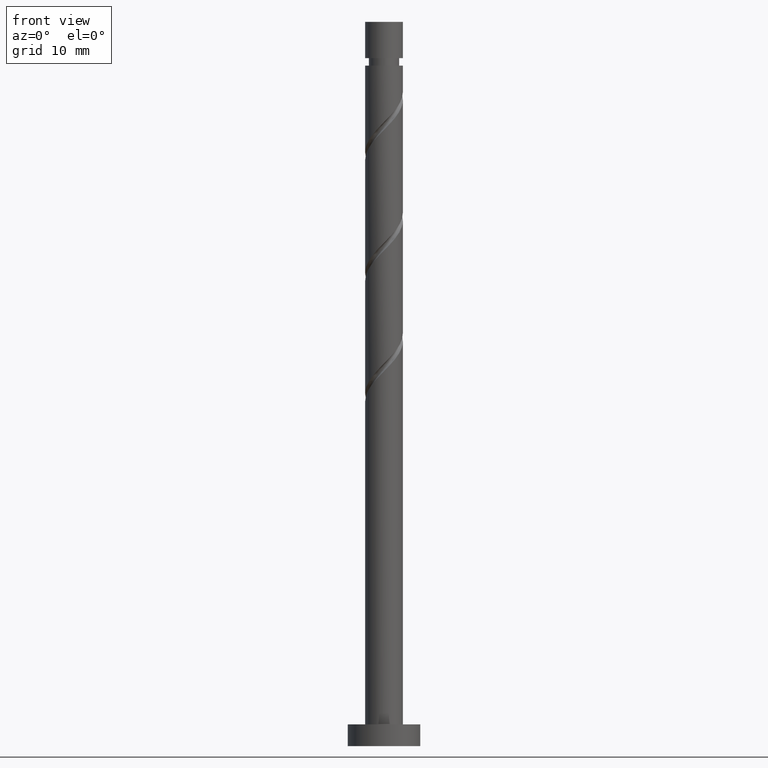
[diagram: clean part render]
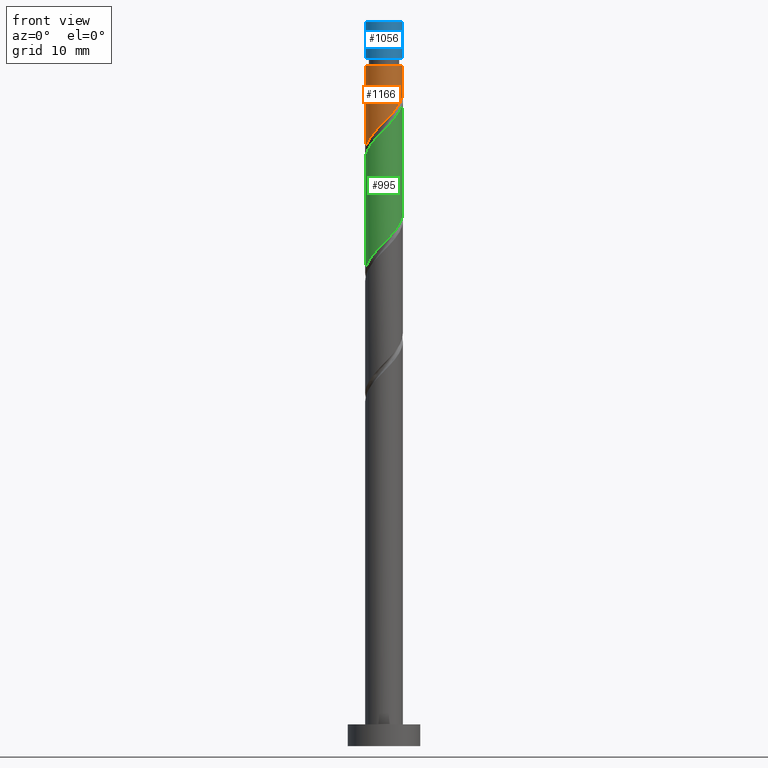
[diagram: same view with three faces highlighted in distinct colors, each labeled with its STEP entity id]
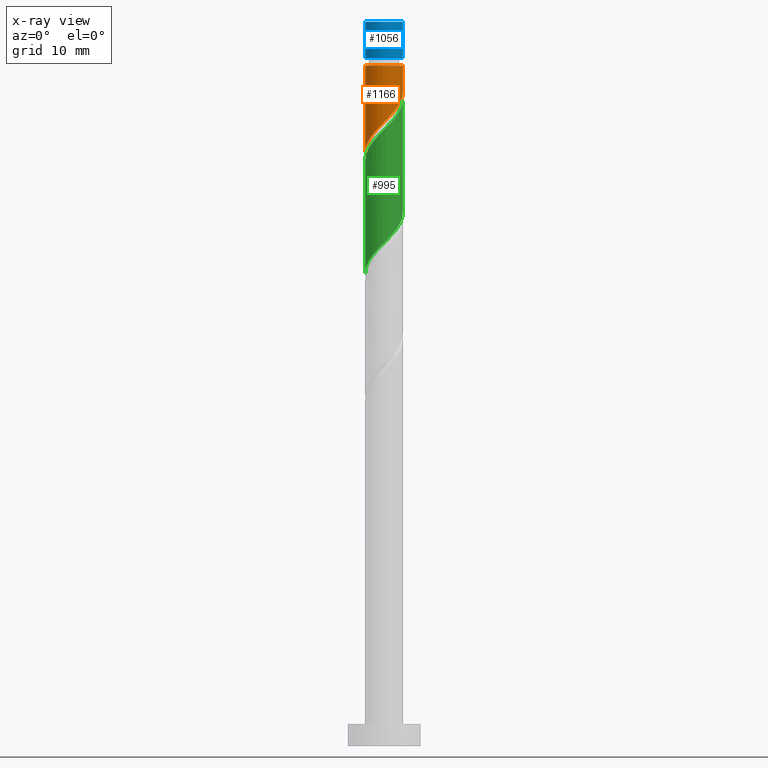
[diagram: x-ray of the same camera — body ghosted, the three highlighted faces saturated]
A machine part, front view with three faces highlighted in distinct colors.
The next image is the same camera in x-ray (body ghosted, the three faces saturated) — at least one of them is partly hidden behind the body in this view.
Their STEP definitions:

[orange] entity #1166 — the highlighted cylindrical surface (edge-blend (fillet) strip) has radius 2.6 mm, axis along (-0, -0, -1).
#39 = LINE ( 'NONE', #961, #270 ) ;
#63 = ORIENTED_EDGE ( 'NONE', *, *, #1381, .T. ) ;
#69 = EDGE_CURVE ( 'NONE', #734, #231, #39, .T. ) ;
#70 = CARTESIAN_POINT ( 'NONE',  ( 2.600000000000000533, -0.03354435326325508337, 90.28968871785848194 ) ) ;
#138 = ORIENTED_EDGE ( 'NONE', *, *, #69, .F. ) ;
#189 = CARTESIAN_POINT ( 'NONE',  ( 2.600000000000000977, 5.303333124147300293E-16, 90.32370609179083942 ) ) ;
#196 = CARTESIAN_POINT ( 'NONE',  ( -0.06811232045027455773, -2.639230427926489764, 86.08914749976499081 ) ) ;
#231 = VERTEX_POINT ( 'NONE', #1184 ) ;
#241 = VERTEX_POINT ( 'NONE', #852 ) ;
#270 = VECTOR ( 'NONE', #1170, 1000.000000000000000 ) ;
#293 = CARTESIAN_POINT ( 'NONE',  ( 2.587307007084879373, -0.5253750955076295082, 89.79285120346875715 ) ) ;
#322 = CARTESIAN_POINT ( 'NONE',  ( -2.600000000000000089, 0.000000000000000000, 100.0000000000000000 ) ) ;
#410 = CARTESIAN_POINT ( 'NONE',  ( 0.000000000000000000, 0.000000000000000000, 100.0000000000000000 ) ) ;
#433 = CARTESIAN_POINT ( 'NONE',  ( -2.034169220009037105, -1.619307130956887830, 83.77433268495018126 ) ) ;
#466 = CARTESIAN_POINT ( 'NONE',  ( -2.600000000000000977, -1.568591487423849327E-15, 81.99037275845748240 ) ) ;
#535 = CARTESIAN_POINT ( 'NONE',  ( 2.599134587407734731, -0.06707754125508245957, 90.25581416643170485 ) ) ;
#545 = CARTESIAN_POINT ( 'NONE',  ( -0.9666746141406119541, -2.456769572073511210, 85.16322157383906699 ) ) ;
#595 = CARTESIAN_POINT ( 'NONE',  ( 2.600000000000000977, 3.184081677783119177E-16, 93.95951787013538592 ) ) ;
#617 = CARTESIAN_POINT ( 'NONE',  ( -2.600000000000000977, 0.000000000000000000, 93.95951787013538592 ) ) ;
#654 = CARTESIAN_POINT ( 'NONE',  ( -0.5173934672954426661, -2.548000000000000931, 85.62618453680207153 ) ) ;
#664 = DIRECTION ( 'NONE',  ( -0.000000000000000000, -0.000000000000000000, -1.000000000000000000 ) ) ;
#665 = ORIENTED_EDGE ( 'NONE', *, *, #1212, .T. ) ;
#696 = DIRECTION ( 'NONE',  ( -0.000000000000000000, -0.000000000000000000, -1.000000000000000000 ) ) ;
#703 = ORIENTED_EDGE ( 'NONE', *, *, #1183, .F. ) ;
#734 = VERTEX_POINT ( 'NONE', #595 ) ;
#751 = CARTESIAN_POINT ( 'NONE',  ( 2.251584436800076805, -1.378602213783889585, 88.86692527754281912 ) ) ;
#813 = DIRECTION ( 'NONE',  ( -1.000000000000000000, 0.000000000000000000, 0.000000000000000000 ) ) ;
#852 = CARTESIAN_POINT ( 'NONE',  ( -2.600000000000000977, -1.568591487423849524E-15, 81.99037275845748240 ) ) ;
#855 = CYLINDRICAL_SURFACE ( 'NONE', #1468, 2.600000000000000089 ) ;
#864 = CARTESIAN_POINT ( 'NONE',  ( 1.947935995195027692, -1.722075886429967229, 88.40396231457982879 ) ) ;
#865 = VERTEX_POINT ( 'NONE', #617 ) ;
#881 = CARTESIAN_POINT ( 'NONE',  ( 0.8386653243171557914, -2.503361143278803880, 87.01507342569092884 ) ) ;
#895 = LINE ( 'NONE', #322, #1063 ) ;
#961 = CARTESIAN_POINT ( 'NONE',  ( 2.600000000000000089, 3.184081677783117698E-16, 100.0000000000000000 ) ) ;
#968 = CIRCLE ( 'NONE', #1182, 2.600000000000000533 ) ;
#993 = CARTESIAN_POINT ( 'NONE',  ( 1.644287553589978579, -2.065549559076044872, 87.94099935161685266 ) ) ;
#999 = CARTESIAN_POINT ( 'NONE',  ( -1.357658148454167213, -2.217377809922342013, 84.70025861087614771 ) ) ;
#1063 = VECTOR ( 'NONE', #1123, 1000.000000000000000 ) ;
#1123 = DIRECTION ( 'NONE',  ( -0.000000000000000000, -0.000000000000000000, -1.000000000000000000 ) ) ;
#1166 = ADVANCED_FACE ( 'NONE', ( #1317 ), #855, .T. ) ;
#1170 = DIRECTION ( 'NONE',  ( -0.000000000000000000, -0.000000000000000000, -1.000000000000000000 ) ) ;
#1182 = AXIS2_PLACEMENT_3D ( 'NONE', #1364, #696, #813 ) ;
#1183 = EDGE_CURVE ( 'NONE', #231, #241, #1358, .T. ) ;
#1184 = CARTESIAN_POINT ( 'NONE',  ( 2.600000000000000977, 5.303333124147300293E-16, 90.32370609179083942 ) ) ;
#1207 = CARTESIAN_POINT ( 'NONE',  ( 1.241476438953567740, -2.284455351177424376, 87.47803638865391918 ) ) ;
#1212 = EDGE_CURVE ( 'NONE', #734, #865, #968, .T. ) ;
#1216 = DIRECTION ( 'NONE',  ( -1.000000000000000000, 0.000000000000000000, 0.000000000000000000 ) ) ;
#1239 = CARTESIAN_POINT ( 'NONE',  ( -2.319696757250351737, -1.260628214142601289, 83.31136972198721935 ) ) ;
#1317 = FACE_OUTER_BOUND ( 'NONE', #1365, .T. ) ;
#1325 = CARTESIAN_POINT ( 'NONE',  ( 0.3852765019334413732, -2.571295785602647044, 86.55211046272798114 ) ) ;
#1358 =( BOUNDED_CURVE ( )  B_SPLINE_CURVE ( 2, ( #189, #70, #535, #293, #1448, #751, #864, #993, #1207, #881, #1325, #196, #654, #545, #999, #1455, #433, #1239, #1469, #1374, #466 ),
 .UNSPECIFIED., .F., .T. ) 
 B_SPLINE_CURVE_WITH_KNOTS ( ( 3, 2, 2, 2, 2, 2, 2, 2, 2, 2, 3 ),
 ( 0.3045248053855290626, 0.3055555555555555802, 0.3194444444444444198, 0.3333333333333333148, 0.3472222222222222099, 0.3611111111111111049, 0.3750000000000000000, 0.3888888888888888951, 0.4027777777777777901, 0.4166666666666666852, 0.4295248053855290071 ),
 .UNSPECIFIED. ) 
 CURVE ( )  GEOMETRIC_REPRESENTATION_ITEM ( )  RATIONAL_B_SPLINE_CURVE ( ( 0.9071930855141199235, 0.9080659294509676460, 0.9090909090909077284, 0.8952797754656424134, 0.9090909090909077284, 0.8952797754656424134, 0.9090909090909077284, 0.8952797754656424134, 0.9090909090909077284, 0.8952797754656424134, 0.9090909090909077284, 0.8952797754656424134, 0.9090909090909077284, 0.8952797754656424134, 0.9090909090909077284, 0.8952797754656424134, 0.9090909090909077284, 0.8952797754656424134, 0.9090909090909077284, 0.8963047551055824957, 0.9071930855141200345 ) ) 
 REPRESENTATION_ITEM ( '' )  );
#1364 = CARTESIAN_POINT ( 'NONE',  ( 0.000000000000000000, 0.000000000000000000, 93.95951787013538592 ) ) ;
#1365 = EDGE_LOOP ( 'NONE', ( #138, #665, #63, #703 ) ) ;
#1374 = CARTESIAN_POINT ( 'NONE',  ( -2.599999999999999201, -0.4239413667331892177, 82.42029227082308296 ) ) ;
#1381 = EDGE_CURVE ( 'NONE', #865, #241, #895, .T. ) ;
#1448 = CARTESIAN_POINT ( 'NONE',  ( 2.419445721942478755, -0.9519886546457584364, 89.32988824050578103 ) ) ;
#1455 = CARTESIAN_POINT ( 'NONE',  ( -1.748641682767721361, -1.977986047771174816, 84.23729564791314317 ) ) ;
#1468 = AXIS2_PLACEMENT_3D ( 'NONE', #410, #664, #1216 ) ;
#1469 = CARTESIAN_POINT ( 'NONE',  ( -2.465329462490470469, -0.8259241135700331471, 82.84840675902425744 ) ) ;

[blue] entity #1056 — the highlighted cylindrical surface (edge-blend (fillet) strip) has radius 2.6 mm, axis along (-0, -0, -1).
#41 = DIRECTION ( 'NONE',  ( -0.000000000000000000, -0.000000000000000000, -1.000000000000000000 ) ) ;
#48 = CARTESIAN_POINT ( 'NONE',  ( -2.600000000000000089, 0.000000000000000000, 100.0000000000000000 ) ) ;
#74 = VECTOR ( 'NONE', #41, 1000.000000000000000 ) ;
#87 = DIRECTION ( 'NONE',  ( 1.000000000000000000, 0.000000000000000000, 0.000000000000000000 ) ) ;
#106 = AXIS2_PLACEMENT_3D ( 'NONE', #1353, #794, #337 ) ;
#207 = CARTESIAN_POINT ( 'NONE',  ( 2.600000000000000089, 3.184081677783117698E-16, 100.0000000000000000 ) ) ;
#337 = DIRECTION ( 'NONE',  ( -1.000000000000000000, 0.000000000000000000, 0.000000000000000000 ) ) ;
#358 = CARTESIAN_POINT ( 'NONE',  ( -2.600000000000000089, 0.000000000000000000, 100.0000000000000000 ) ) ;
#382 = LINE ( 'NONE', #1299, #614 ) ;
#383 = CARTESIAN_POINT ( 'NONE',  ( 2.600000000000000977, 3.184081677783119177E-16, 94.99951787013539217 ) ) ;
#474 = VERTEX_POINT ( 'NONE', #383 ) ;
#614 = VECTOR ( 'NONE', #640, 1000.000000000000000 ) ;
#616 = VERTEX_POINT ( 'NONE', #358 ) ;
#640 = DIRECTION ( 'NONE',  ( -0.000000000000000000, -0.000000000000000000, -1.000000000000000000 ) ) ;
#658 = CIRCLE ( 'NONE', #846, 2.600000000000000533 ) ;
#730 = ORIENTED_EDGE ( 'NONE', *, *, #840, .T. ) ;
#731 = LINE ( 'NONE', #48, #74 ) ;
#736 = CARTESIAN_POINT ( 'NONE',  ( -2.600000000000000533, 0.000000000000000000, 94.99951787013539217 ) ) ;
#745 = DIRECTION ( 'NONE',  ( -1.000000000000000000, 0.000000000000000000, 0.000000000000000000 ) ) ;
#772 = FACE_OUTER_BOUND ( 'NONE', #1406, .T. ) ;
#789 = EDGE_CURVE ( 'NONE', #474, #1280, #658, .T. ) ;
#794 = DIRECTION ( 'NONE',  ( -0.000000000000000000, -0.000000000000000000, -1.000000000000000000 ) ) ;
#799 = CIRCLE ( 'NONE', #1338, 2.600000000000000089 ) ;
#840 = EDGE_CURVE ( 'NONE', #616, #1280, #731, .T. ) ;
#846 = AXIS2_PLACEMENT_3D ( 'NONE', #1068, #970, #745 ) ;
#875 = EDGE_CURVE ( 'NONE', #1164, #474, #382, .T. ) ;
#970 = DIRECTION ( 'NONE',  ( -0.000000000000000000, -0.000000000000000000, -1.000000000000000000 ) ) ;
#1024 = ORIENTED_EDGE ( 'NONE', *, *, #1429, .F. ) ;
#1050 = ORIENTED_EDGE ( 'NONE', *, *, #875, .F. ) ;
#1056 = ADVANCED_FACE ( 'NONE', ( #772 ), #1229, .T. ) ;
#1068 = CARTESIAN_POINT ( 'NONE',  ( 0.000000000000000000, 0.000000000000000000, 94.99951787013539217 ) ) ;
#1126 = DIRECTION ( 'NONE',  ( 0.000000000000000000, 0.000000000000000000, 1.000000000000000000 ) ) ;
#1134 = CARTESIAN_POINT ( 'NONE',  ( 0.000000000000000000, 0.000000000000000000, 100.0000000000000000 ) ) ;
#1164 = VERTEX_POINT ( 'NONE', #207 ) ;
#1193 = ORIENTED_EDGE ( 'NONE', *, *, #789, .F. ) ;
#1229 = CYLINDRICAL_SURFACE ( 'NONE', #106, 2.600000000000000089 ) ;
#1280 = VERTEX_POINT ( 'NONE', #736 ) ;
#1299 = CARTESIAN_POINT ( 'NONE',  ( 2.600000000000000089, 3.184081677783117698E-16, 100.0000000000000000 ) ) ;
#1338 = AXIS2_PLACEMENT_3D ( 'NONE', #1134, #1126, #87 ) ;
#1353 = CARTESIAN_POINT ( 'NONE',  ( 0.000000000000000000, 0.000000000000000000, 100.0000000000000000 ) ) ;
#1406 = EDGE_LOOP ( 'NONE', ( #1050, #1024, #730, #1193 ) ) ;
#1429 = EDGE_CURVE ( 'NONE', #616, #1164, #799, .T. ) ;

[green] entity #995 — the highlighted cylindrical surface (edge-blend (fillet) strip) has radius 2.6 mm, axis along (-0, -0, -1).
#52 = CARTESIAN_POINT ( 'NONE',  ( 2.600000000000003642, 1.344506989220432448E-15, 89.26199631514663224 ) ) ;
#68 = CARTESIAN_POINT ( 'NONE',  ( 0.000000000000000000, 0.000000000000000000, 100.0000000000000000 ) ) ;
#77 = VECTOR ( 'NONE', #1409, 1000.000000000000000 ) ;
#85 = CARTESIAN_POINT ( 'NONE',  ( 2.419445721942478755, -0.9519886546457584364, 72.66322157383906699 ) ) ;
#94 =( BOUNDED_CURVE ( )  B_SPLINE_CURVE ( 2, ( #899, #1464, #1122, #102, #85, #763, #785, #192, #668, #1116, #95, #1242, #219, #559, #1018, #1472, #452, #1348, #459, #1219, #1046 ),
 .UNSPECIFIED., .F., .T. ) 
 B_SPLINE_CURVE_WITH_KNOTS ( ( 3, 2, 2, 2, 2, 2, 2, 2, 2, 2, 3 ),
 ( 0.5545248053855291737, 0.5555555555555555802, 0.5694444444444444198, 0.5833333333333333703, 0.5972222222222222099, 0.6111111111111111605, 0.6250000000000000000, 0.6388888888888888395, 0.6527777777777777901, 0.6666666666666666297, 0.6795248053855290626 ),
 .UNSPECIFIED. ) 
 CURVE ( )  GEOMETRIC_REPRESENTATION_ITEM ( )  RATIONAL_B_SPLINE_CURVE ( ( 0.9071930855141202565, 0.9080659294509678681, 0.9090909090909077284, 0.8952797754656424134, 0.9090909090909077284, 0.8952797754656424134, 0.9090909090909077284, 0.8952797754656424134, 0.9090909090909077284, 0.8952797754656424134, 0.9090909090909077284, 0.8952797754656424134, 0.9090909090909077284, 0.8952797754656424134, 0.9090909090909077284, 0.8952797754656424134, 0.9090909090909077284, 0.8952797754656424134, 0.9090909090909077284, 0.8963047551055824957, 0.9071930855141200345 ) ) 
 REPRESENTATION_ITEM ( '' )  );
#95 = CARTESIAN_POINT ( 'NONE',  ( 0.3852765019334413732, -2.571295785602647044, 69.88544379606133816 ) ) ;
#102 = CARTESIAN_POINT ( 'NONE',  ( 2.587307007084879373, -0.5253750955076295082, 73.12618453680204311 ) ) ;
#103 = CARTESIAN_POINT ( 'NONE',  ( 2.034169220009039769, -1.619307130956890495, 87.47803638865393339 ) ) ;
#114 = CARTESIAN_POINT ( 'NONE',  ( -0.8386653243171581229, -2.503361143278807432, 84.23729564791315738 ) ) ;
#157 = LINE ( 'NONE', #711, #77 ) ;
#167 = VECTOR ( 'NONE', #717, 1000.000000000000000 ) ;
#192 = CARTESIAN_POINT ( 'NONE',  ( 1.644287553589978579, -2.065549559076044872, 71.27433268495020968 ) ) ;
#194 = CARTESIAN_POINT ( 'NONE',  ( -2.419445721942482308, -0.9519886546457594356, 81.92248083309839046 ) ) ;
#214 = DIRECTION ( 'NONE',  ( -0.000000000000000000, -0.000000000000000000, -1.000000000000000000 ) ) ;
#219 = CARTESIAN_POINT ( 'NONE',  ( -0.5173934672954426661, -2.548000000000000931, 68.95951787013538592 ) ) ;
#252 = CARTESIAN_POINT ( 'NONE',  ( -2.600000000000000089, 0.000000000000000000, 100.0000000000000000 ) ) ;
#304 = CARTESIAN_POINT ( 'NONE',  ( 0.9666746141406117321, -2.456769572073515651, 86.08914749976500502 ) ) ;
#317 = ORIENTED_EDGE ( 'NONE', *, *, #321, .F. ) ;
#321 = EDGE_CURVE ( 'NONE', #767, #1044, #564, .T. ) ;
#343 = CARTESIAN_POINT ( 'NONE',  ( 2.465329462490475354, -0.8259241135700365888, 88.40396231457987142 ) ) ;
#375 = CARTESIAN_POINT ( 'NONE',  ( -2.600000000000000533, -1.292220606306313636E-15, 65.32370609179082521 ) ) ;
#417 = CARTESIAN_POINT ( 'NONE',  ( -2.600000000000003642, -0.03354435326325336253, 80.96268035574567534 ) ) ;
#424 = AXIS2_PLACEMENT_3D ( 'NONE', #68, #214, #672 ) ;
#426 = CARTESIAN_POINT ( 'NONE',  ( 1.357658148454168101, -2.217377809922346454, 86.55211046272800957 ) ) ;
#429 = ORIENTED_EDGE ( 'NONE', *, *, #604, .T. ) ;
#432 = CYLINDRICAL_SURFACE ( 'NONE', #424, 2.600000000000000089 ) ;
#452 = CARTESIAN_POINT ( 'NONE',  ( -2.034169220009037105, -1.619307130956887830, 67.10766601828353828 ) ) ;
#459 = CARTESIAN_POINT ( 'NONE',  ( -2.465329462490470469, -0.8259241135700331471, 66.18174009235762867 ) ) ;
#465 = CARTESIAN_POINT ( 'NONE',  ( 2.600000000000000533, 2.502276896604711082E-16, 73.65703942512412539 ) ) ;
#548 = EDGE_CURVE ( 'NONE', #1345, #639, #94, .T. ) ;
#559 = CARTESIAN_POINT ( 'NONE',  ( -0.9666746141406119541, -2.456769572073511210, 68.49655490717240980 ) ) ;
#564 =( BOUNDED_CURVE ( )  B_SPLINE_CURVE ( 2, ( #1360, #417, #748, #870, #194, #1203, #989, #651, #1101, #114, #1026, #1445, #637, #304, #426, #908, #103, #1135, #343, #1322, #52 ),
 .UNSPECIFIED., .F., .T. ) 
 B_SPLINE_CURVE_WITH_KNOTS ( ( 3, 2, 2, 2, 2, 2, 2, 2, 2, 2, 3 ),
 ( 0.5545248053855290626, 0.5555555555555555802, 0.5694444444444444198, 0.5833333333333332593, 0.5972222222222222099, 0.6111111111111111605, 0.6250000000000000000, 0.6388888888888888395, 0.6527777777777777901, 0.6666666666666667407, 0.6795248053855292847 ),
 .UNSPECIFIED. ) 
 CURVE ( )  GEOMETRIC_REPRESENTATION_ITEM ( )  RATIONAL_B_SPLINE_CURVE ( ( 0.9071930855141263628, 0.9080659294509740853, 0.9090909090909141677, 0.8952797754656487417, 0.9090909090909141677, 0.8952797754656487417, 0.9090909090909141677, 0.8952797754656487417, 0.9090909090909141677, 0.8952797754656487417, 0.9090909090909141677, 0.8952797754656487417, 0.9090909090909141677, 0.8952797754656487417, 0.9090909090909141677, 0.8952797754656487417, 0.9090909090909141677, 0.8952797754656487417, 0.9090909090909141677, 0.8963047551055886020, 0.9071930855141268069 ) ) 
 REPRESENTATION_ITEM ( '' )  );
#604 = EDGE_CURVE ( 'NONE', #767, #639, #1378, .T. ) ;
#637 = CARTESIAN_POINT ( 'NONE',  ( 0.5173934672954424441, -2.548000000000004039, 85.62618453680208574 ) ) ;
#639 = VERTEX_POINT ( 'NONE', #375 ) ;
#651 = CARTESIAN_POINT ( 'NONE',  ( -1.644287553589981687, -2.065549559076047981, 83.31136972198721935 ) ) ;
#668 = CARTESIAN_POINT ( 'NONE',  ( 1.241476438953567740, -2.284455351177424376, 70.81136972198723356 ) ) ;
#672 = DIRECTION ( 'NONE',  ( -1.000000000000000000, 0.000000000000000000, 0.000000000000000000 ) ) ;
#711 = CARTESIAN_POINT ( 'NONE',  ( 2.600000000000000089, 3.184081677783117698E-16, 100.0000000000000000 ) ) ;
#717 = DIRECTION ( 'NONE',  ( -0.000000000000000000, -0.000000000000000000, -1.000000000000000000 ) ) ;
#748 = CARTESIAN_POINT ( 'NONE',  ( -2.599134587407737840, -0.06707754125508093301, 80.99655490717243822 ) ) ;
#763 = CARTESIAN_POINT ( 'NONE',  ( 2.251584436800076805, -1.378602213783889585, 72.20025861087613350 ) ) ;
#767 = VERTEX_POINT ( 'NONE', #807 ) ;
#785 = CARTESIAN_POINT ( 'NONE',  ( 1.947935995195027692, -1.722075886429967229, 71.73729564791317159 ) ) ;
#804 = ORIENTED_EDGE ( 'NONE', *, *, #548, .F. ) ;
#807 = CARTESIAN_POINT ( 'NONE',  ( -2.600000000000003642, -1.378119663950943244E-15, 80.92866298181330365 ) ) ;
#870 = CARTESIAN_POINT ( 'NONE',  ( -2.587307007084882926, -0.5253750955076293971, 81.45951787013541434 ) ) ;
#899 = CARTESIAN_POINT ( 'NONE',  ( 2.600000000000000533, 2.502276896604711082E-16, 73.65703942512411118 ) ) ;
#908 = CARTESIAN_POINT ( 'NONE',  ( 1.748641682767723582, -1.977986047771178590, 87.01507342569092884 ) ) ;
#989 = CARTESIAN_POINT ( 'NONE',  ( -1.947935995195032133, -1.722075886429968117, 82.84840675902427165 ) ) ;
#995 = ADVANCED_FACE ( 'NONE', ( #1454 ), #432, .T. ) ;
#1013 = CARTESIAN_POINT ( 'NONE',  ( 2.600000000000003642, 1.344506989220432448E-15, 89.26199631514663224 ) ) ;
#1015 = ORIENTED_EDGE ( 'NONE', *, *, #1273, .F. ) ;
#1018 = CARTESIAN_POINT ( 'NONE',  ( -1.357658148454167213, -2.217377809922342013, 68.03359194420947631 ) ) ;
#1026 = CARTESIAN_POINT ( 'NONE',  ( -0.3852765019334429275, -2.571295785602650152, 84.70025861087611929 ) ) ;
#1044 = VERTEX_POINT ( 'NONE', #1013 ) ;
#1046 = CARTESIAN_POINT ( 'NONE',  ( -2.600000000000000533, -1.292220606306313636E-15, 65.32370609179082521 ) ) ;
#1101 = CARTESIAN_POINT ( 'NONE',  ( -1.241476438953570627, -2.284455351177427485, 83.77433268495019547 ) ) ;
#1116 = CARTESIAN_POINT ( 'NONE',  ( 0.8386653243171557914, -2.503361143278803880, 70.34840675902425744 ) ) ;
#1122 = CARTESIAN_POINT ( 'NONE',  ( 2.599134587407734731, -0.06707754125508245957, 73.58914749976501923 ) ) ;
#1135 = CARTESIAN_POINT ( 'NONE',  ( 2.319696757250354846, -1.260628214142604619, 87.94099935161688109 ) ) ;
#1187 = EDGE_LOOP ( 'NONE', ( #1015, #317, #429, #804 ) ) ;
#1203 = CARTESIAN_POINT ( 'NONE',  ( -2.251584436800082134, -1.378602213783890029, 82.38544379606132395 ) ) ;
#1219 = CARTESIAN_POINT ( 'NONE',  ( -2.600000000000000533, -0.4239413667331872193, 65.75362560415642577 ) ) ;
#1242 = CARTESIAN_POINT ( 'NONE',  ( -0.06811232045027455773, -2.639230427926489764, 69.42248083309833362 ) ) ;
#1273 = EDGE_CURVE ( 'NONE', #1044, #1345, #157, .T. ) ;
#1322 = CARTESIAN_POINT ( 'NONE',  ( 2.600000000000005862, -0.4239413667331833335, 88.83207680278103169 ) ) ;
#1345 = VERTEX_POINT ( 'NONE', #465 ) ;
#1348 = CARTESIAN_POINT ( 'NONE',  ( -2.319696757250351737, -1.260628214142601289, 66.64470305532056216 ) ) ;
#1360 = CARTESIAN_POINT ( 'NONE',  ( -2.600000000000003642, -1.378119663950943244E-15, 80.92866298181330365 ) ) ;
#1378 = LINE ( 'NONE', #252, #167 ) ;
#1409 = DIRECTION ( 'NONE',  ( -0.000000000000000000, -0.000000000000000000, -1.000000000000000000 ) ) ;
#1445 = CARTESIAN_POINT ( 'NONE',  ( 0.06811232045027239279, -2.639230427926493316, 85.16322157383906699 ) ) ;
#1454 = FACE_OUTER_BOUND ( 'NONE', #1187, .T. ) ;
#1464 = CARTESIAN_POINT ( 'NONE',  ( 2.600000000000000533, -0.03354435326325885119, 73.62302205119176790 ) ) ;
#1472 = CARTESIAN_POINT ( 'NONE',  ( -1.748641682767721361, -1.977986047771174816, 67.57062898124648598 ) ) ;